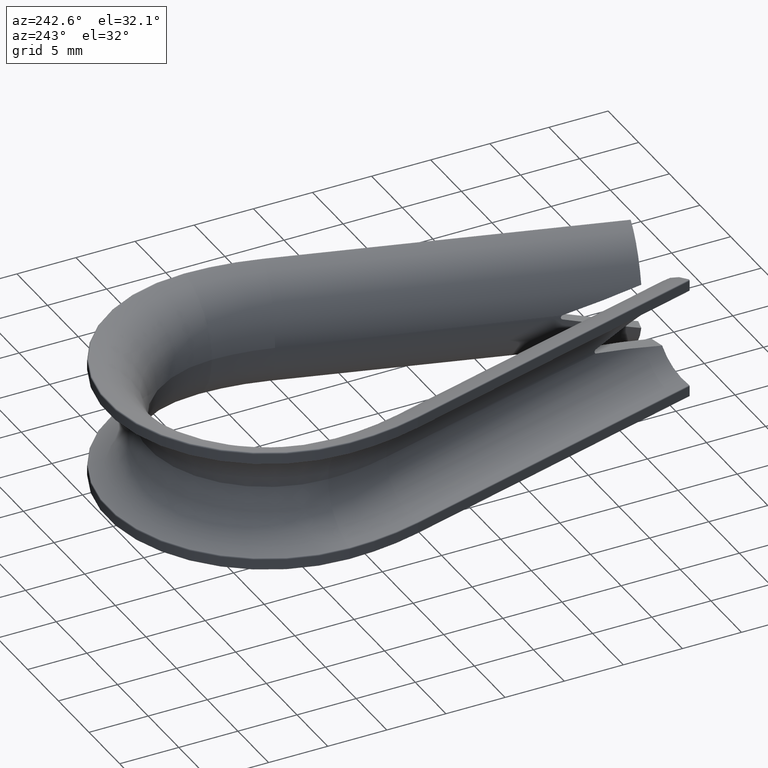
[diagram: clean part render]
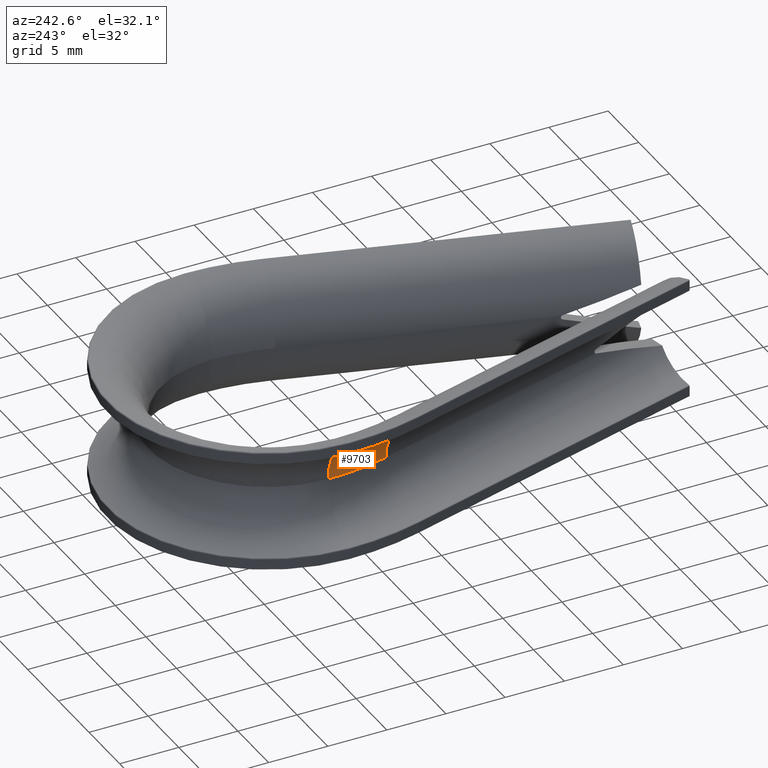
[diagram: same view with one face highlighted and labeled with its STEP entity id]
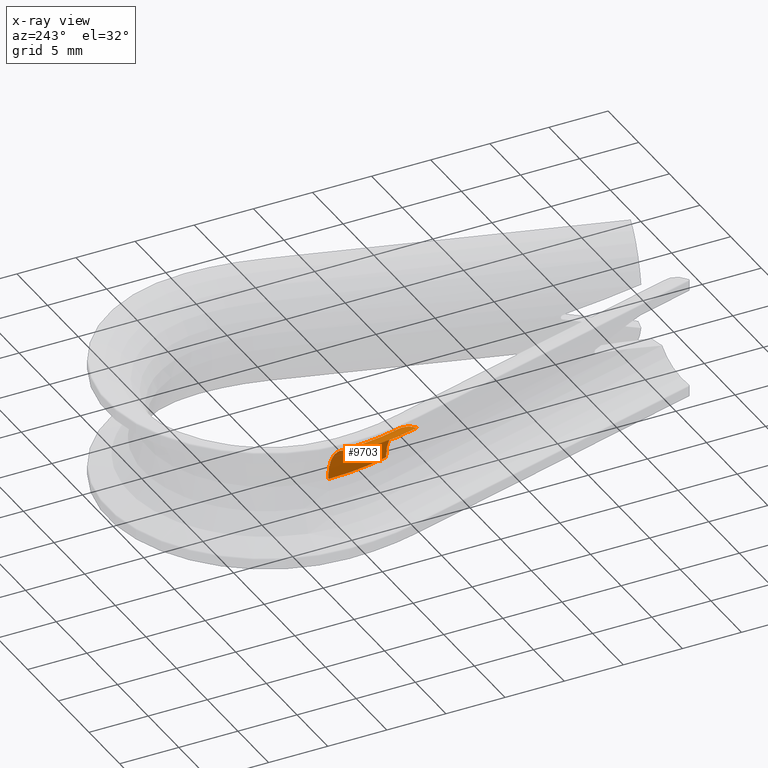
[diagram: x-ray of the same camera — body ghosted, the highlighted face saturated]
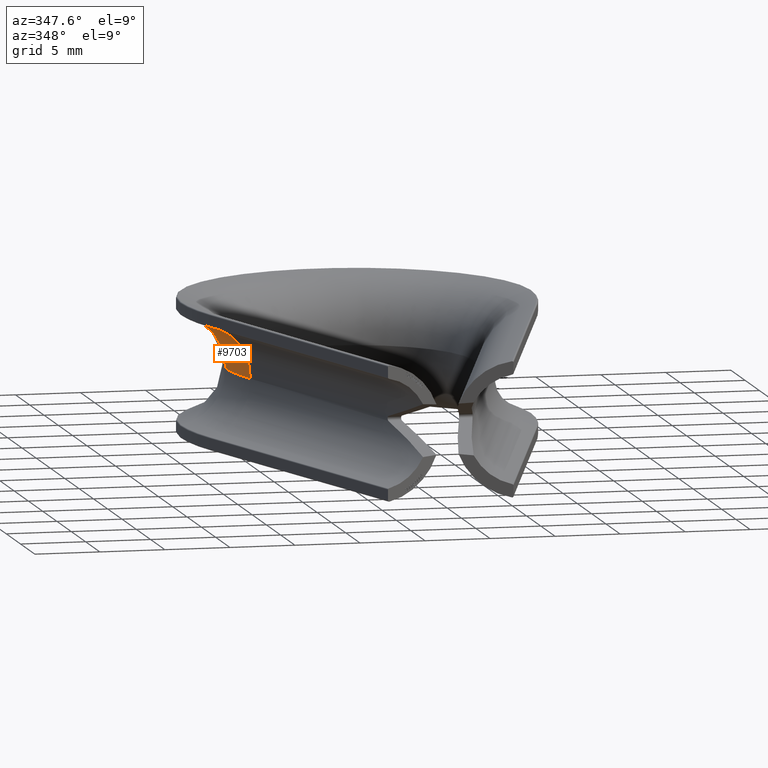
[diagram: same view with one face highlighted and labeled with its STEP entity id]
A machine part, auxiliary view. The second image highlights one B-rep face of the part: STEP entity #9703.
The next image is the same camera in x-ray: the body ghosted, the highlighted face saturated — about 0% of this face is hidden behind the body in this view.
A second angle (auxiliary view) of the same face is appended — the face is thin or edge-on in the first view.
In plain terms, the highlighted toroidal blend (fillet) surface has major radius 23.25 mm and minor (blend) radius 4.25 mm.
Its self-contained STEP definition (entity closure, byte-faithful):
#1341 = VERTEX_POINT ( 'NONE', #11712 ) ;
#1509 = EDGE_LOOP ( 'NONE', ( #16062, #11174, #11367, #8069 ) ) ;
#1528 = AXIS2_PLACEMENT_3D ( 'NONE', #2848, #10232, #11613 ) ;
#1722 = VERTEX_POINT ( 'NONE', #7278 ) ;
#2595 = CARTESIAN_POINT ( 'NONE',  ( -13.33845266479107000, 25.55360313485985200, 0.0000000000000000000 ) ) ;
#2620 = DIRECTION ( 'NONE',  ( -1.000000000000000000, 0.0000000000000000000, 0.0000000000000000000 ) ) ;
#2848 = CARTESIAN_POINT ( 'NONE',  ( -14.24999999999999800, 32.00000000000000000, 0.0000000000000000000 ) ) ;
#3248 = DIRECTION ( 'NONE',  ( -0.0000000000000000000, 0.0000000000000000000, 1.000000000000000000 ) ) ;
#3649 = AXIS2_PLACEMENT_3D ( 'NONE', #2595, #6239, #11308 ) ;
#4327 = AXIS2_PLACEMENT_3D ( 'NONE', #13076, #9532, #15890 ) ;
#4484 = CARTESIAN_POINT ( 'NONE',  ( 9.000000000000001800, 32.00000000000000000, -5.204748896376250700E-016 ) ) ;
#4627 = DIRECTION ( 'NONE',  ( 1.000000000000000000, 0.0000000000000000000, 0.0000000000000000000 ) ) ;
#4812 = CARTESIAN_POINT ( 'NONE',  ( -9.255079597033560600, 26.73197675536934500, 0.0000000000000000000 ) ) ;
#5519 = EDGE_CURVE ( 'NONE', #1722, #12352, #11789, .T. ) ;
#5548 = AXIS2_PLACEMENT_3D ( 'NONE', #13720, #13919, #2620 ) ;
#5973 = AXIS2_PLACEMENT_3D ( 'NONE', #4484, #3248, #4627 ) ;
#6065 = TOROIDAL_SURFACE ( 'NONE', #4327, 23.25000000000000000, 4.250000000000000000 ) ;
#6239 = DIRECTION ( 'NONE',  ( 0.2772643812963505600, -0.9607936630017665000, 0.0000000000000000000 ) ) ;
#7278 = CARTESIAN_POINT ( 'NONE',  ( -12.54055218028712900, 25.78386004921216900, 4.168073484263692800 ) ) ;
#8069 = ORIENTED_EDGE ( 'NONE', *, *, #5519, .T. ) ;
#9243 = EDGE_CURVE ( 'NONE', #1341, #15489, #14707, .T. ) ;
#9354 = FACE_OUTER_BOUND ( 'NONE', #1509, .T. ) ;
#9467 = EDGE_CURVE ( 'NONE', #1341, #12352, #14426, .T. ) ;
#9532 = DIRECTION ( 'NONE',  ( -0.0000000000000000000, 0.0000000000000000000, 1.000000000000000000 ) ) ;
#9703 = ADVANCED_FACE ( 'NONE', ( #9354 ), #6065, .F. ) ;
#10232 = DIRECTION ( 'NONE',  ( 1.608122649676636600E-016, -1.000000000000000000, 0.0000000000000000000 ) ) ;
#10485 = CIRCLE ( 'NONE', #3649, 4.250000000000000000 ) ;
#11174 = ORIENTED_EDGE ( 'NONE', *, *, #9243, .T. ) ;
#11308 = DIRECTION ( 'NONE',  ( 0.0000000000000000000, 0.0000000000000000000, -1.000000000000000000 ) ) ;
#11367 = ORIENTED_EDGE ( 'NONE', *, *, #15866, .T. ) ;
#11613 = DIRECTION ( 'NONE',  ( 0.0000000000000000000, 0.0000000000000000000, -1.000000000000000000 ) ) ;
#11712 = CARTESIAN_POINT ( 'NONE',  ( -9.999999999999998200, 32.00000000000000000, -5.204748896376250700E-016 ) ) ;
#11789 = CIRCLE ( 'NONE', #5548, 22.41954022988501900 ) ;
#12352 = VERTEX_POINT ( 'NONE', #14749 ) ;
#13076 = CARTESIAN_POINT ( 'NONE',  ( 9.000000000000001800, 32.00000000000000000, 0.0000000000000000000 ) ) ;
#13720 = CARTESIAN_POINT ( 'NONE',  ( 9.000000000000001800, 32.00000000000000000, 4.168073484263692800 ) ) ;
#13919 = DIRECTION ( 'NONE',  ( 0.0000000000000000000, -0.0000000000000000000, -1.000000000000000000 ) ) ;
#14426 = CIRCLE ( 'NONE', #1528, 4.250000000000000000 ) ;
#14707 = CIRCLE ( 'NONE', #5973, 19.00000000000000000 ) ;
#14749 = CARTESIAN_POINT ( 'NONE',  ( -13.41954022988475800, 32.00000000000000000, 4.168073484263397100 ) ) ;
#15489 = VERTEX_POINT ( 'NONE', #4812 ) ;
#15866 = EDGE_CURVE ( 'NONE', #15489, #1722, #10485, .T. ) ;
#15890 = DIRECTION ( 'NONE',  ( 1.000000000000000000, 0.0000000000000000000, 0.0000000000000000000 ) ) ;
#16062 = ORIENTED_EDGE ( 'NONE', *, *, #9467, .F. ) ;